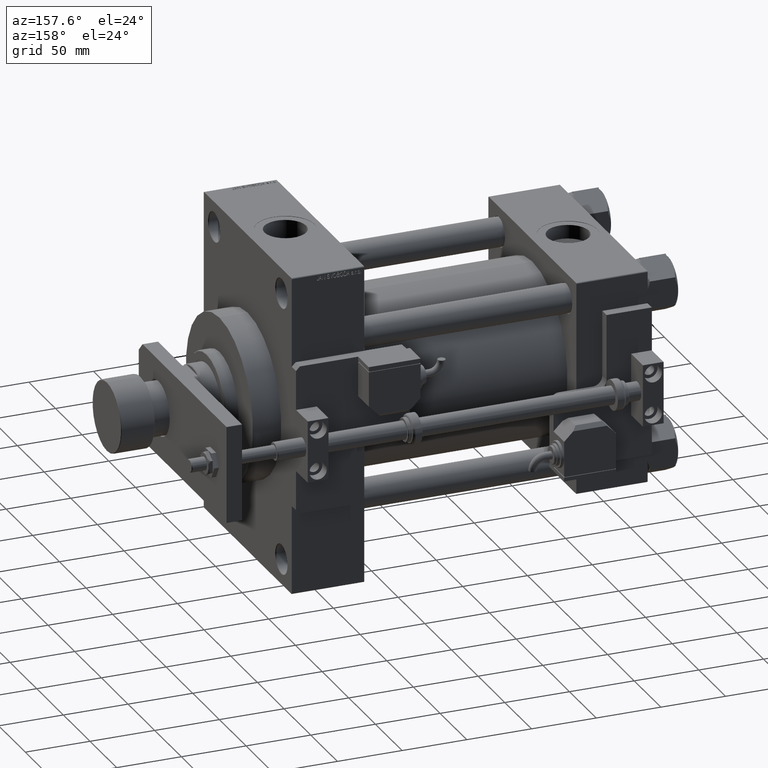
[diagram: clean part render]
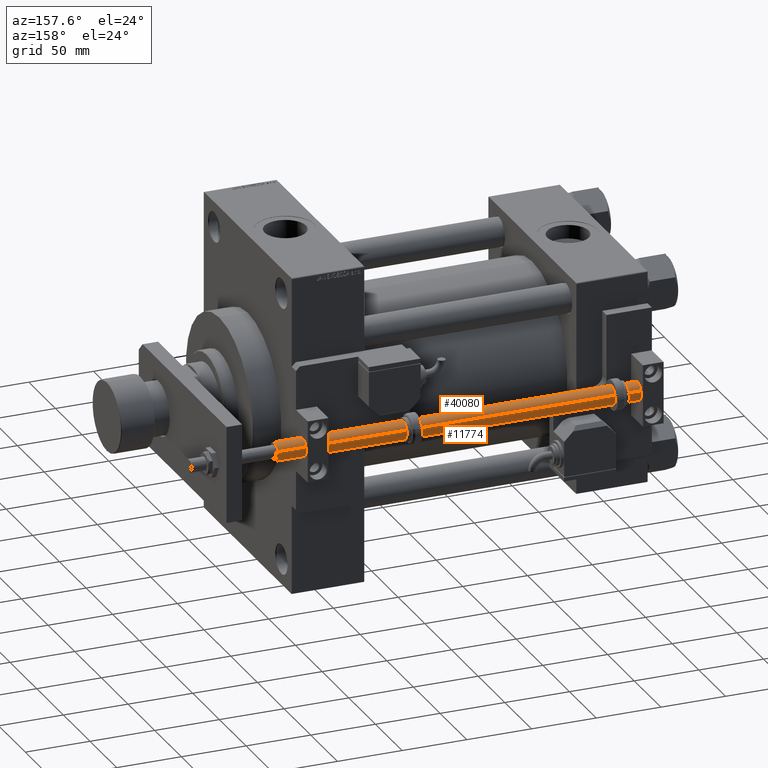
[diagram: same view with one multi-face feature highlighted, each face labeled with its STEP entity id]
A machine part, auxiliary view. The highlighted faces form ONE feature: a constant-radius fillet chain: 2 tangent blend faces with common blend radius 7 mm. The faces share edges in the B-rep.
Their STEP definitions:
[1] entity #40080 (Cylinder):
#134 = DIRECTION ( 'NONE',  ( 1.000000000000000000, 0.000000000000000000, 0.000000000000000000 ) ) ;
#323 = ORIENTED_EDGE ( 'NONE', *, *, #34088, .F. ) ;
#1199 = CARTESIAN_POINT ( 'NONE',  ( 0.000000000000000000, 0.000000000000000000, 297.0000000000000000 ) ) ;
#13350 = VECTOR ( 'NONE', #22612, 1000.000000000000000 ) ;
#14623 = EDGE_CURVE ( 'NONE', #53640, #15598, #44490, .T. ) ;
#14741 = EDGE_CURVE ( 'NONE', #23342, #53640, #35873, .T. ) ;
#14940 = CARTESIAN_POINT ( 'NONE',  ( -7.000000000000000000, 0.000000000000000000, 297.0000000000000000 ) ) ;
#14991 = CARTESIAN_POINT ( 'NONE',  ( -7.000000000000000000, 0.000000000000000000, 297.0000000000000000 ) ) ;
#15416 = CARTESIAN_POINT ( 'NONE',  ( -7.000000000000000000, 0.000000000000000000, 0.2999999999999669598 ) ) ;
#15598 = VERTEX_POINT ( 'NONE', #43805 ) ;
#16566 = AXIS2_PLACEMENT_3D ( 'NONE', #45877, #33085, #134 ) ;
#17141 = DIRECTION ( 'NONE',  ( -0.000000000000000000, -0.000000000000000000, 1.000000000000000000 ) ) ;
#18717 = AXIS2_PLACEMENT_3D ( 'NONE', #1199, #33880, #50489 ) ;
#22612 = DIRECTION ( 'NONE',  ( -0.000000000000000000, -0.000000000000000000, -1.000000000000000000 ) ) ;
#23342 = VERTEX_POINT ( 'NONE', #14991 ) ;
#23375 = ORIENTED_EDGE ( 'NONE', *, *, #14741, .T. ) ;
#25880 = LINE ( 'NONE', #29963, #13350 ) ;
#29963 = CARTESIAN_POINT ( 'NONE',  ( 7.000000000000000000, 8.572527594031473190E-16, 297.0000000000000000 ) ) ;
#33085 = DIRECTION ( 'NONE',  ( 0.000000000000000000, 0.000000000000000000, 1.000000000000000000 ) ) ;
#33880 = DIRECTION ( 'NONE',  ( -0.000000000000000000, -0.000000000000000000, -1.000000000000000000 ) ) ;
#34088 = EDGE_CURVE ( 'NONE', #37392, #15598, #25880, .T. ) ;
#34763 = EDGE_LOOP ( 'NONE', ( #323, #40488, #23375, #41836 ) ) ;
#35873 = LINE ( 'NONE', #14940, #52306 ) ;
#37392 = VERTEX_POINT ( 'NONE', #40458 ) ;
#38604 = DIRECTION ( 'NONE',  ( 1.000000000000000000, 0.000000000000000000, 0.000000000000000000 ) ) ;
#39289 = FACE_OUTER_BOUND ( 'NONE', #34763, .T. ) ;
#40080 = ADVANCED_FACE ( 'NONE', ( #39289 ), #46673, .T. ) ;
#40458 = CARTESIAN_POINT ( 'NONE',  ( 7.000000000000000000, 8.572527594031473190E-16, 297.0000000000000000 ) ) ;
#40488 = ORIENTED_EDGE ( 'NONE', *, *, #46882, .F. ) ;
#40914 = CIRCLE ( 'NONE', #16566, 7.000000000000000000 ) ;
#41836 = ORIENTED_EDGE ( 'NONE', *, *, #14623, .T. ) ;
#43805 = CARTESIAN_POINT ( 'NONE',  ( 7.000000000000000000, 8.572527594031473190E-16, 0.2999999999999669598 ) ) ;
#44490 = CIRCLE ( 'NONE', #46237, 7.000000000000000000 ) ;
#45877 = CARTESIAN_POINT ( 'NONE',  ( 0.000000000000000000, 0.000000000000000000, 297.0000000000000000 ) ) ;
#45993 = CARTESIAN_POINT ( 'NONE',  ( 0.000000000000000000, 0.000000000000000000, 0.2999999999999669598 ) ) ;
#46237 = AXIS2_PLACEMENT_3D ( 'NONE', #45993, #17141, #38604 ) ;
#46673 = CYLINDRICAL_SURFACE ( 'NONE', #18717, 7.000000000000000000 ) ;
#46882 = EDGE_CURVE ( 'NONE', #23342, #37392, #40914, .T. ) ;
#50489 = DIRECTION ( 'NONE',  ( -1.000000000000000000, 0.000000000000000000, 0.000000000000000000 ) ) ;
#51435 = DIRECTION ( 'NONE',  ( -0.000000000000000000, -0.000000000000000000, -1.000000000000000000 ) ) ;
#52306 = VECTOR ( 'NONE', #51435, 1000.000000000000000 ) ;
#53640 = VERTEX_POINT ( 'NONE', #15416 ) ;
[2] entity #11774 (Cylinder):
#797 = AXIS2_PLACEMENT_3D ( 'NONE', #47284, #51628, #18146 ) ;
#4653 = EDGE_CURVE ( 'NONE', #37392, #23342, #46785, .T. ) ;
#4955 = CYLINDRICAL_SURFACE ( 'NONE', #11344, 7.000000000000000000 ) ;
#9683 = DIRECTION ( 'NONE',  ( 0.000000000000000000, 0.000000000000000000, 1.000000000000000000 ) ) ;
#9893 = EDGE_CURVE ( 'NONE', #15598, #53640, #37328, .T. ) ;
#11344 = AXIS2_PLACEMENT_3D ( 'NONE', #38151, #51518, #50967 ) ;
#11774 = ADVANCED_FACE ( 'NONE', ( #39231 ), #4955, .T. ) ;
#13350 = VECTOR ( 'NONE', #22612, 1000.000000000000000 ) ;
#14741 = EDGE_CURVE ( 'NONE', #23342, #53640, #35873, .T. ) ;
#14940 = CARTESIAN_POINT ( 'NONE',  ( -7.000000000000000000, 0.000000000000000000, 297.0000000000000000 ) ) ;
#14991 = CARTESIAN_POINT ( 'NONE',  ( -7.000000000000000000, 0.000000000000000000, 297.0000000000000000 ) ) ;
#15416 = CARTESIAN_POINT ( 'NONE',  ( -7.000000000000000000, 0.000000000000000000, 0.2999999999999669598 ) ) ;
#15598 = VERTEX_POINT ( 'NONE', #43805 ) ;
#18146 = DIRECTION ( 'NONE',  ( 1.000000000000000000, 0.000000000000000000, 0.000000000000000000 ) ) ;
#19117 = ORIENTED_EDGE ( 'NONE', *, *, #34088, .T. ) ;
#22612 = DIRECTION ( 'NONE',  ( -0.000000000000000000, -0.000000000000000000, -1.000000000000000000 ) ) ;
#23342 = VERTEX_POINT ( 'NONE', #14991 ) ;
#23551 = ORIENTED_EDGE ( 'NONE', *, *, #14741, .F. ) ;
#25880 = LINE ( 'NONE', #29963, #13350 ) ;
#26297 = DIRECTION ( 'NONE',  ( 1.000000000000000000, 0.000000000000000000, 0.000000000000000000 ) ) ;
#29963 = CARTESIAN_POINT ( 'NONE',  ( 7.000000000000000000, 8.572527594031473190E-16, 297.0000000000000000 ) ) ;
#34088 = EDGE_CURVE ( 'NONE', #37392, #15598, #25880, .T. ) ;
#34144 = EDGE_LOOP ( 'NONE', ( #37219, #19117, #51146, #23551 ) ) ;
#35873 = LINE ( 'NONE', #14940, #52306 ) ;
#37219 = ORIENTED_EDGE ( 'NONE', *, *, #4653, .F. ) ;
#37328 = CIRCLE ( 'NONE', #797, 7.000000000000000000 ) ;
#37392 = VERTEX_POINT ( 'NONE', #40458 ) ;
#38151 = CARTESIAN_POINT ( 'NONE',  ( 0.000000000000000000, 0.000000000000000000, 297.0000000000000000 ) ) ;
#39231 = FACE_OUTER_BOUND ( 'NONE', #34144, .T. ) ;
#40458 = CARTESIAN_POINT ( 'NONE',  ( 7.000000000000000000, 8.572527594031473190E-16, 297.0000000000000000 ) ) ;
#43805 = CARTESIAN_POINT ( 'NONE',  ( 7.000000000000000000, 8.572527594031473190E-16, 0.2999999999999669598 ) ) ;
#46785 = CIRCLE ( 'NONE', #51142, 7.000000000000000000 ) ;
#46986 = CARTESIAN_POINT ( 'NONE',  ( 0.000000000000000000, 0.000000000000000000, 297.0000000000000000 ) ) ;
#47284 = CARTESIAN_POINT ( 'NONE',  ( 0.000000000000000000, 0.000000000000000000, 0.2999999999999669598 ) ) ;
#50967 = DIRECTION ( 'NONE',  ( -1.000000000000000000, 0.000000000000000000, 0.000000000000000000 ) ) ;
#51142 = AXIS2_PLACEMENT_3D ( 'NONE', #46986, #9683, #26297 ) ;
#51146 = ORIENTED_EDGE ( 'NONE', *, *, #9893, .T. ) ;
#51435 = DIRECTION ( 'NONE',  ( -0.000000000000000000, -0.000000000000000000, -1.000000000000000000 ) ) ;
#51518 = DIRECTION ( 'NONE',  ( -0.000000000000000000, -0.000000000000000000, -1.000000000000000000 ) ) ;
#51628 = DIRECTION ( 'NONE',  ( -0.000000000000000000, -0.000000000000000000, 1.000000000000000000 ) ) ;
#52306 = VECTOR ( 'NONE', #51435, 1000.000000000000000 ) ;
#53640 = VERTEX_POINT ( 'NONE', #15416 ) ;